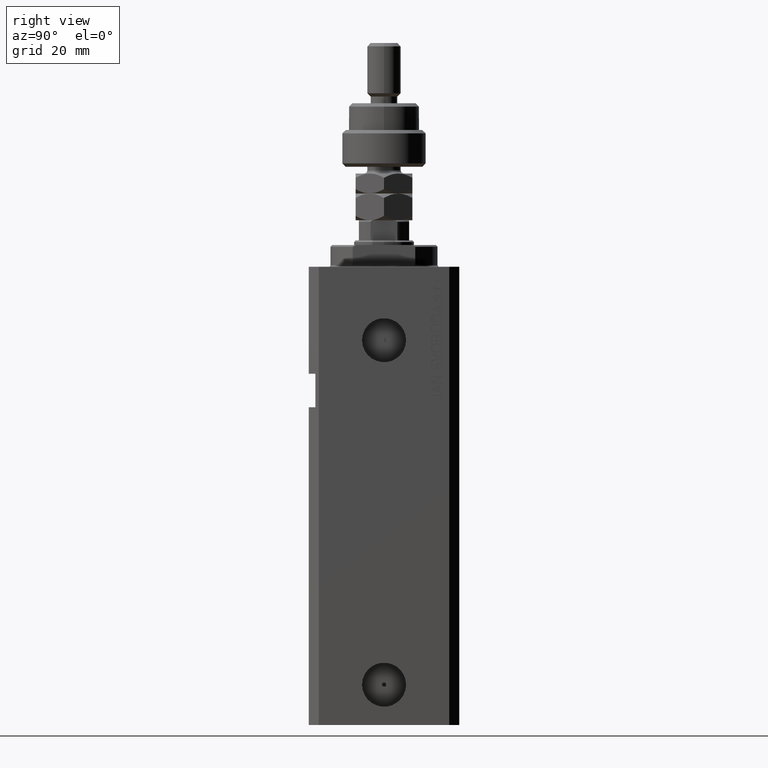
[diagram: clean part render]
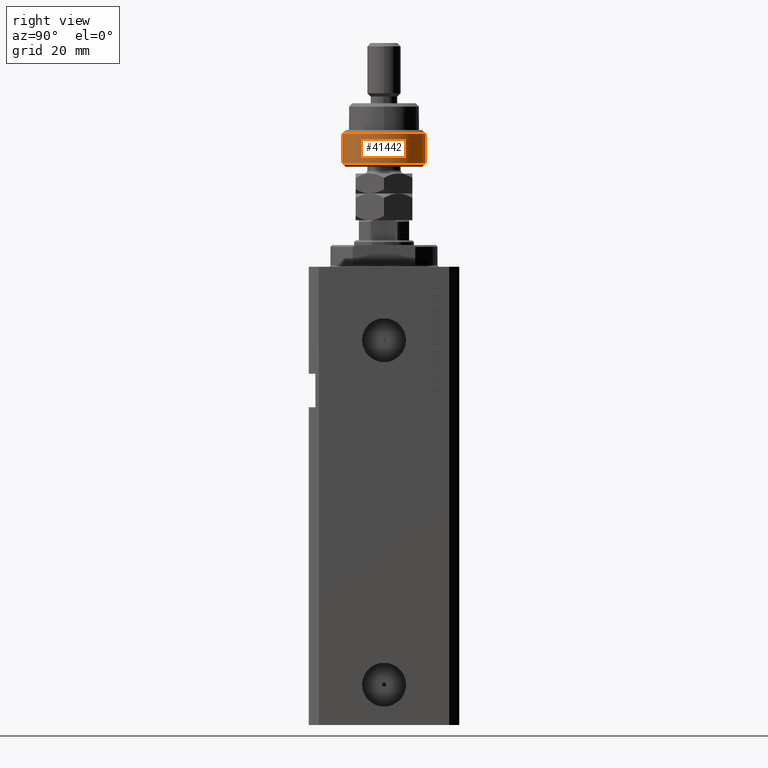
[diagram: same view with one face highlighted and labeled with its STEP entity id]
A machine part, right view. The second image highlights one B-rep face of the part: STEP entity #41442.
In plain terms, the highlighted cylindrical surface (partial cylindrical patch) has radius 12.5 mm, axis along (-0, -0, -1).
Its self-contained STEP definition (entity closure, byte-faithful):
#1654 = FACE_OUTER_BOUND ( 'NONE', #42994, .T. ) ;
#3337 = VERTEX_POINT ( 'NONE', #4370 ) ;
#4370 = CARTESIAN_POINT ( 'NONE',  ( -11.22497216032182443, 5.500000000000000000, 0.9999999999999956701 ) ) ;
#4691 = DIRECTION ( 'NONE',  ( -0.000000000000000000, -0.000000000000000000, 1.000000000000000000 ) ) ;
#5105 = DIRECTION ( 'NONE',  ( 0.000000000000000000, 0.000000000000000000, -1.000000000000000000 ) ) ;
#6156 = LINE ( 'NONE', #9298, #29513 ) ;
#8634 = CIRCLE ( 'NONE', #25588, 12.50000000000000000 ) ;
#8688 = DIRECTION ( 'NONE',  ( 1.000000000000000000, 0.000000000000000000, 0.000000000000000000 ) ) ;
#9298 = CARTESIAN_POINT ( 'NONE',  ( -11.22497216032182088, -5.500000000000007105, 12.50000000000000000 ) ) ;
#9410 = CYLINDRICAL_SURFACE ( 'NONE', #35653, 12.50000000000000000 ) ;
#9895 = DIRECTION ( 'NONE',  ( -1.000000000000000000, 0.000000000000000000, 0.000000000000000000 ) ) ;
#11973 = CIRCLE ( 'NONE', #15086, 12.50000000000000000 ) ;
#14941 = EDGE_CURVE ( 'NONE', #28638, #3337, #31130, .T. ) ;
#15086 = AXIS2_PLACEMENT_3D ( 'NONE', #20122, #4691, #23743 ) ;
#17006 = VERTEX_POINT ( 'NONE', #45937 ) ;
#17368 = CARTESIAN_POINT ( 'NONE',  ( 0.000000000000000000, 0.000000000000000000, 11.00000000000000000 ) ) ;
#17439 = CARTESIAN_POINT ( 'NONE',  ( -11.22497216032182443, 5.500000000000000000, 12.50000000000000000 ) ) ;
#19087 = CARTESIAN_POINT ( 'NONE',  ( -11.22497216032182088, -5.500000000000007105, 0.9999999999999956701 ) ) ;
#20122 = CARTESIAN_POINT ( 'NONE',  ( 0.000000000000000000, 0.000000000000000000, 0.9999999999999956701 ) ) ;
#21965 = EDGE_CURVE ( 'NONE', #33047, #28638, #11973, .T. ) ;
#22054 = VERTEX_POINT ( 'NONE', #41868 ) ;
#23683 = CARTESIAN_POINT ( 'NONE',  ( 0.000000000000000000, 0.000000000000000000, 10.00000000000000000 ) ) ;
#23743 = DIRECTION ( 'NONE',  ( 1.000000000000000000, 0.000000000000000000, 0.000000000000000000 ) ) ;
#25394 = LINE ( 'NONE', #17439, #31049 ) ;
#25588 = AXIS2_PLACEMENT_3D ( 'NONE', #23683, #5105, #45890 ) ;
#28638 = VERTEX_POINT ( 'NONE', #43146 ) ;
#29513 = VECTOR ( 'NONE', #45736, 1000.000000000000000 ) ;
#31048 = ORIENTED_EDGE ( 'NONE', *, *, #21965, .T. ) ;
#31049 = VECTOR ( 'NONE', #35787, 1000.000000000000000 ) ;
#31057 = ORIENTED_EDGE ( 'NONE', *, *, #42820, .T. ) ;
#31116 = DIRECTION ( 'NONE',  ( -0.000000000000000000, -0.000000000000000000, -1.000000000000000000 ) ) ;
#31130 = CIRCLE ( 'NONE', #41167, 12.50000000000000000 ) ;
#33047 = VERTEX_POINT ( 'NONE', #19087 ) ;
#35653 = AXIS2_PLACEMENT_3D ( 'NONE', #17368, #31116, #9895 ) ;
#35787 = DIRECTION ( 'NONE',  ( -0.000000000000000000, -0.000000000000000000, -1.000000000000000000 ) ) ;
#38290 = ORIENTED_EDGE ( 'NONE', *, *, #14941, .T. ) ;
#39020 = ORIENTED_EDGE ( 'NONE', *, *, #40526, .T. ) ;
#40044 = ORIENTED_EDGE ( 'NONE', *, *, #43320, .F. ) ;
#40526 = EDGE_CURVE ( 'NONE', #22054, #17006, #8634, .T. ) ;
#41167 = AXIS2_PLACEMENT_3D ( 'NONE', #41754, #42230, #8688 ) ;
#41442 = ADVANCED_FACE ( 'NONE', ( #1654 ), #9410, .T. ) ;
#41754 = CARTESIAN_POINT ( 'NONE',  ( 0.000000000000000000, 0.000000000000000000, 0.9999999999999956701 ) ) ;
#41868 = CARTESIAN_POINT ( 'NONE',  ( -11.22497216032182443, 5.500000000000000000, 10.00000000000000000 ) ) ;
#42230 = DIRECTION ( 'NONE',  ( -0.000000000000000000, -0.000000000000000000, 1.000000000000000000 ) ) ;
#42820 = EDGE_CURVE ( 'NONE', #17006, #33047, #6156, .T. ) ;
#42994 = EDGE_LOOP ( 'NONE', ( #40044, #39020, #31057, #31048, #38290 ) ) ;
#43146 = CARTESIAN_POINT ( 'NONE',  ( 12.50000000000000000, 0.000000000000000000, 0.9999999999999956701 ) ) ;
#43320 = EDGE_CURVE ( 'NONE', #22054, #3337, #25394, .T. ) ;
#45736 = DIRECTION ( 'NONE',  ( -0.000000000000000000, -0.000000000000000000, -1.000000000000000000 ) ) ;
#45890 = DIRECTION ( 'NONE',  ( 1.000000000000000000, 0.000000000000000000, 0.000000000000000000 ) ) ;
#45937 = CARTESIAN_POINT ( 'NONE',  ( -11.22497216032182088, -5.500000000000007105, 10.00000000000000000 ) ) ;